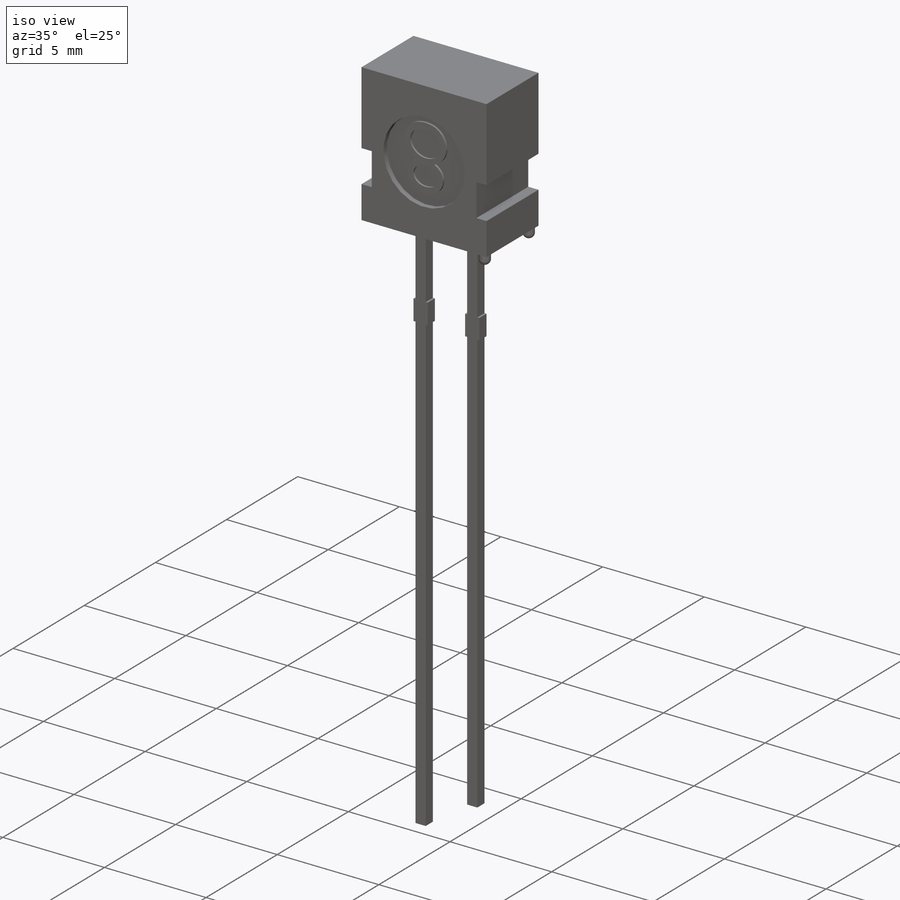
[diagram: iso view]
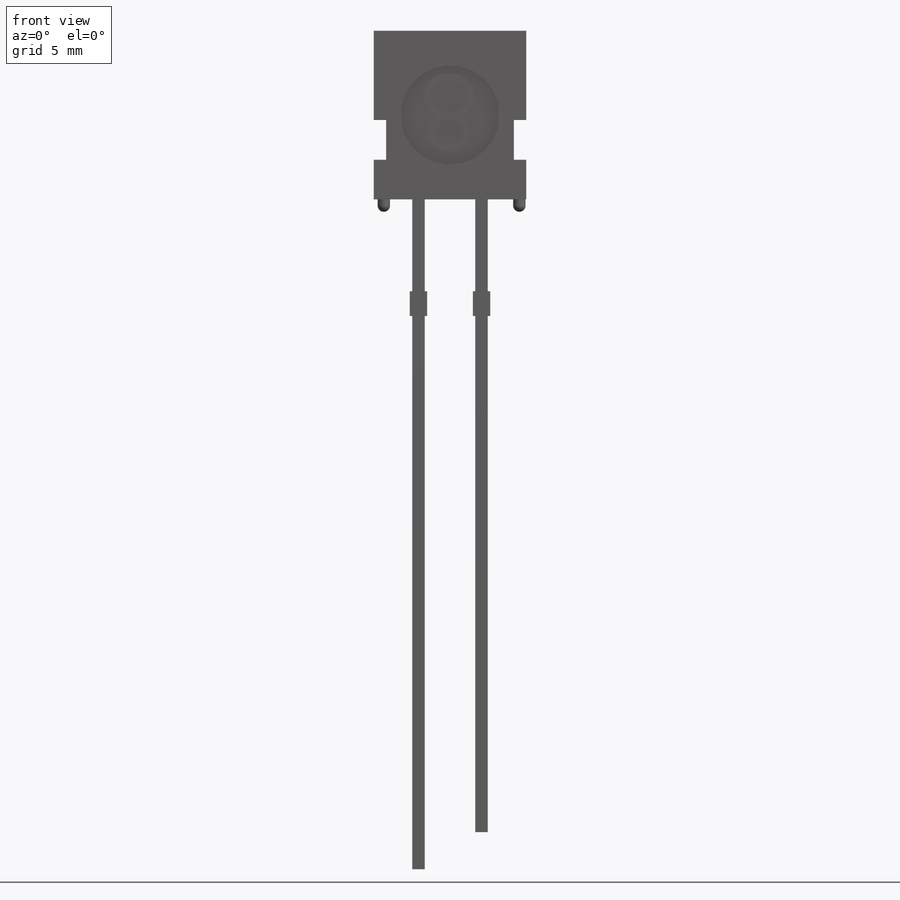
[diagram: front view]
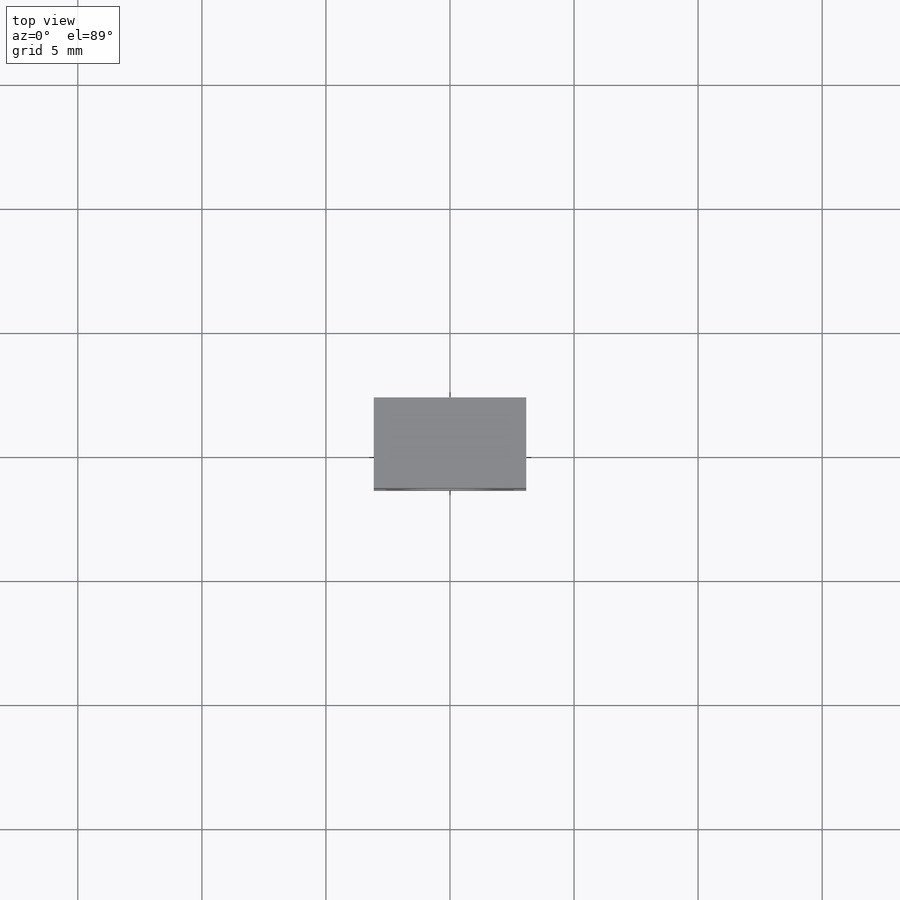
[diagram: top view]
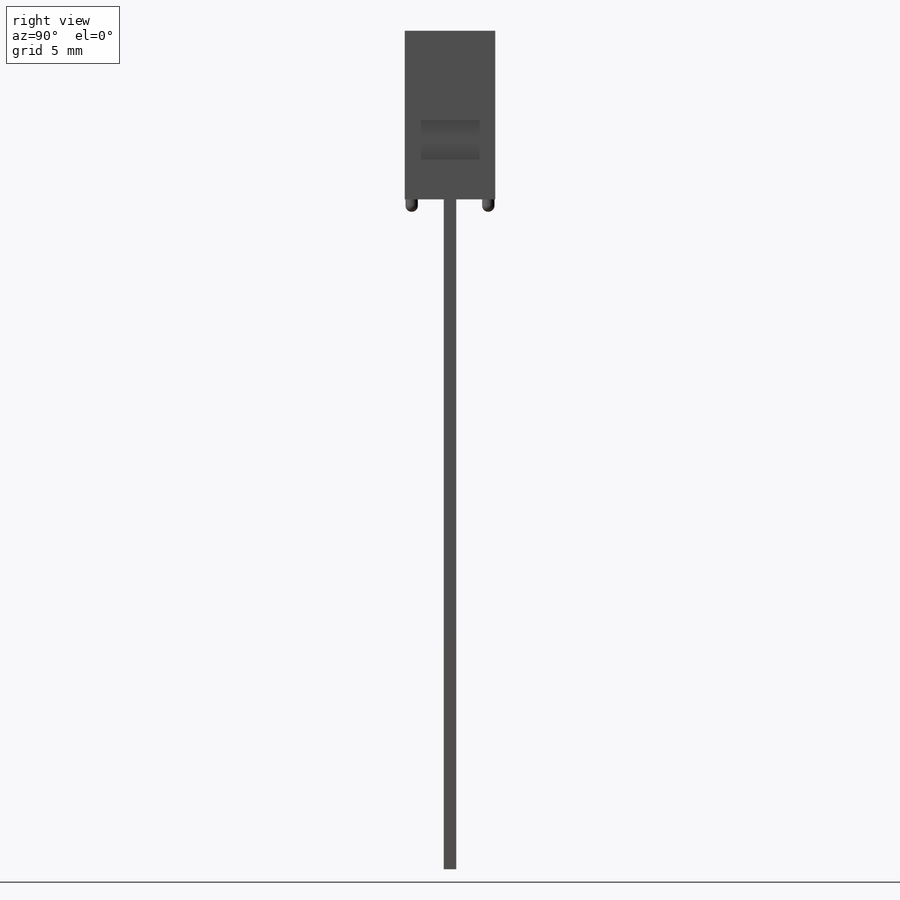
[diagram: right view]
SOLIDWORKS PART (.sldprt)
format: sldprt  version: not decoded by parser v0  size: 828,928 bytes
history: native  units: mm
features: sketch x8, extrude x5, cut_extrude x3, fillet x3, material x1 (+12 scaffold rows collapsed)
feature tree (32):
  scaffold x12  (default folders/planes/origin — collapsed)
  material  "Material <not specified>"
  sketch  "Sketch1"  dims[D1=6.8mm D2=6.15mm D3=1.5mm D4=27.0mm D5=2.54mm D6=0.5mm D7=1.6mm D8=3.6mm D9=0.5mm D10=0.7mm D11=1.0mm D12=10.5mm]
  extrude  "Extrude1"  Depth=3.65mm
  extrude  "Extrude2"  [1 undecoded]
  sketch  "Sketch1<3>"  dims[D1=0.5mm]
  sketch  "Sketch2"  dims[D1=5.58mm D2=3.18mm]
  cut_extrude  "Cut-Extrude1"  [1 undecoded]
  extrude  "Extrude4"  [1 undecoded]
  sketch  "Sketch2<5>"  dims[D3=4.0deg]
  sketch  "Sketch3"  dims[D1=0.5mm]
  extrude  "Extrude5"  Depth=0.5mm
  fillet  "Fillet1"  Radius=0.25mm
  sketch  "Sketch4"  dims[D1=4.0mm]
  fillet  "Fillet2"  Radius=0.25mm
  fillet  "Fillet3"  Radius=0.25mm
  cut_extrude  "Cut-Extrude2"  Depth=0.25mm
  sketch  "Sketch5"
  extrude  "Extrude6"  Depth=0.1mm
  sketch  "Sketch6"
  cut_extrude  "Cut-Extrude3"  Depth=0.01mm
decode coverage: 14 of 19 modeling features carry decoded parameters
note: 3 parameter values undecoded
summary: no parameter record found for 3 features
note: suppression state not decoded; provenance and decode notes live in map.json
